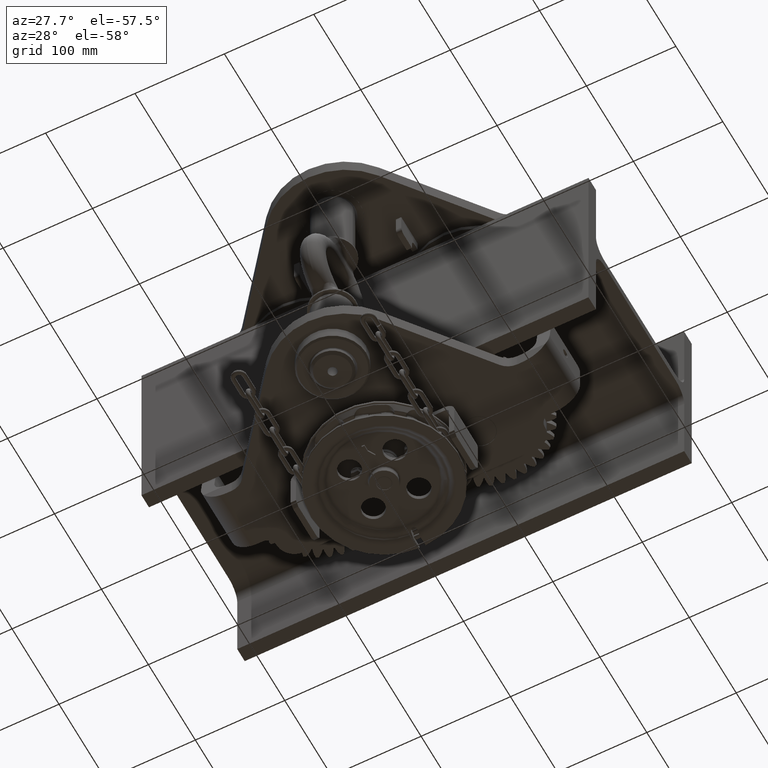
[diagram: clean part render]
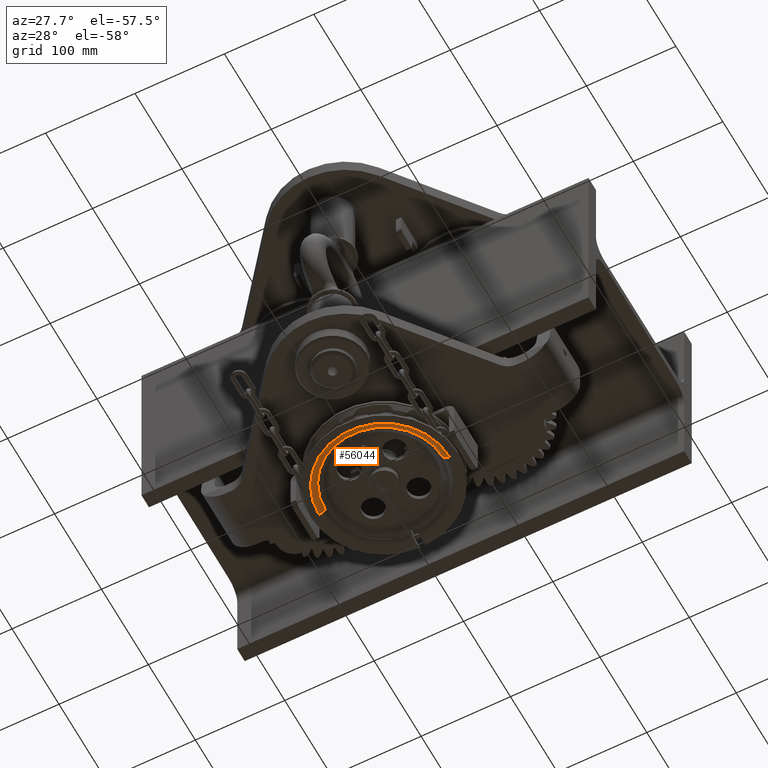
[diagram: same view with one face highlighted and labeled with its STEP entity id]
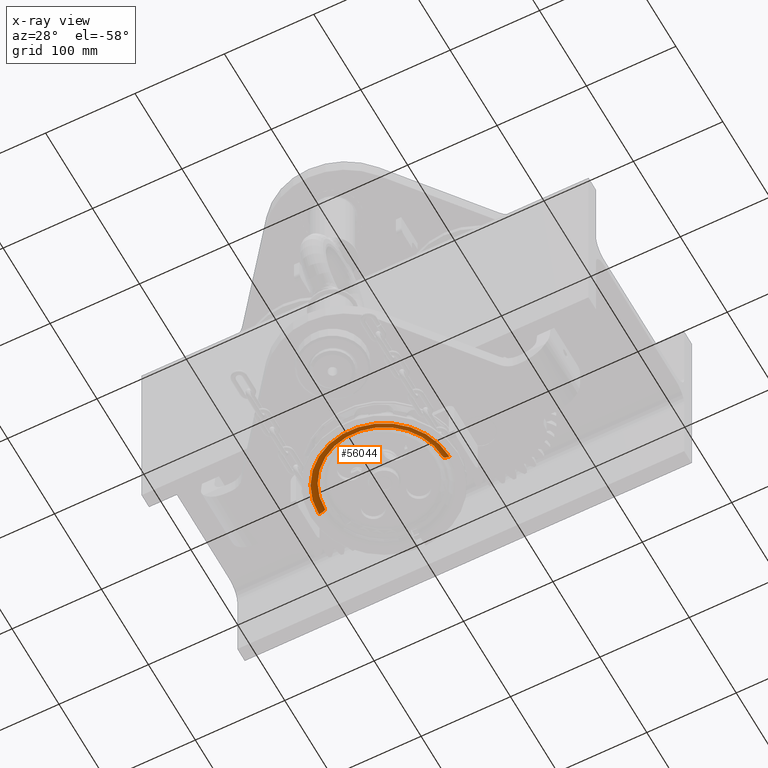
[diagram: x-ray of the same camera — body ghosted, the highlighted face saturated]
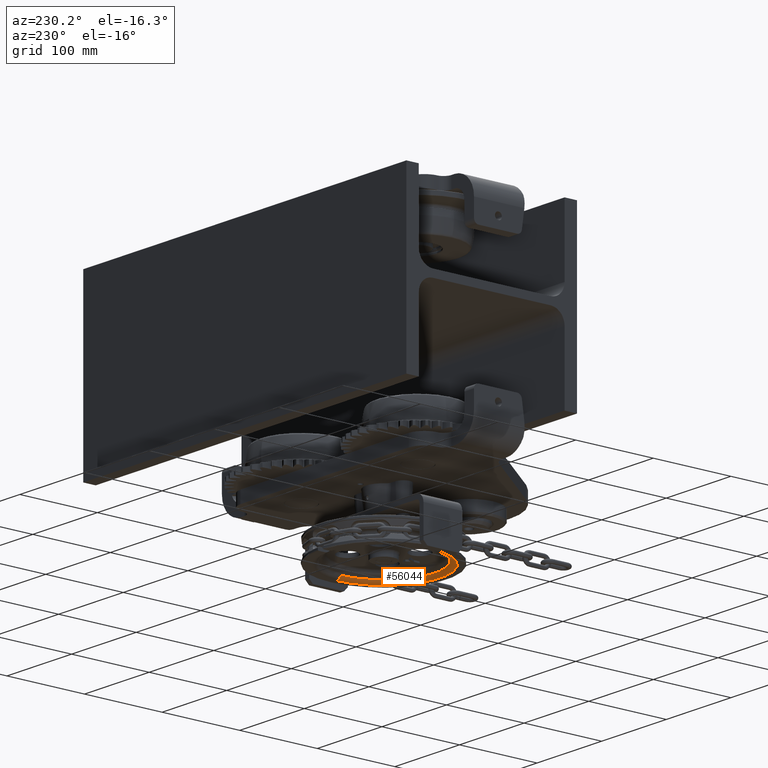
[diagram: same view with one face highlighted and labeled with its STEP entity id]
A machine part, auxiliary view. The second image highlights one B-rep face of the part: STEP entity #56044.
The next image is the same camera in x-ray: the body ghosted, the highlighted face saturated — about 0% of this face is hidden behind the body in this view.
A second angle (auxiliary view) of the same face is appended — the face is thin or edge-on in the first view.
In plain terms, the highlighted toroidal blend (fillet) surface has major radius 73 mm and minor (blend) radius 8.5 mm.
Its self-contained STEP definition (entity closure, byte-faithful):
#1209 = CIRCLE ( 'NONE', #80434, 65.94875014980952700 ) ;
#2949 = CARTESIAN_POINT ( 'NONE',  ( 65.94875014980868900, -69.07999999999998400, -213.7465646050803800 ) ) ;
#7599 = CARTESIAN_POINT ( 'NONE',  ( 72.99999999999919000, -69.07999999999998400, -217.5000000000012500 ) ) ;
#8561 = CARTESIAN_POINT ( 'NONE',  ( -73.00000000000082400, -69.08000000000001300, -209.0000000000004300 ) ) ;
#8819 = CARTESIAN_POINT ( 'NONE',  ( -8.010122485547073900E-013, -69.07999999999999800, -209.0000000000007100 ) ) ;
#10165 = EDGE_CURVE ( 'NONE', #61050, #66592, #26808, .T. ) ;
#10647 = VERTEX_POINT ( 'NONE', #64761 ) ;
#10655 = VERTEX_POINT ( 'NONE', #2949 ) ;
#14634 = CARTESIAN_POINT ( 'NONE',  ( 72.99999999999921800, -69.07999999999998400, -209.0000000000009900 ) ) ;
#15771 = DIRECTION ( 'NONE',  ( 1.000000000000000000, 0.0000000000000000000, 0.0000000000000000000 ) ) ;
#17290 = EDGE_CURVE ( 'NONE', #10647, #61050, #103757, .T. ) ;
#26645 = DIRECTION ( 'NONE',  ( 1.000000000000000000, 1.702796050038578000E-016, -3.889090410080496300E-015 ) ) ;
#26808 = CIRCLE ( 'NONE', #111265, 73.00000000000002800 ) ;
#28737 = TOROIDAL_SURFACE ( 'NONE', #86946, 73.00000000000001400, 8.500000000000243400 ) ;
#29614 = ORIENTED_EDGE ( 'NONE', *, *, #17290, .F. ) ;
#41799 = DIRECTION ( 'NONE',  ( 2.220446049250265000E-016, -1.000000000000000000, 5.529568124670074900E-018 ) ) ;
#43490 = DIRECTION ( 'NONE',  ( 3.889090410080496300E-015, 5.529568124670938500E-018, 1.000000000000000000 ) ) ;
#44869 = AXIS2_PLACEMENT_3D ( 'NONE', #14634, #41799, #15771 ) ;
#52717 = DIRECTION ( 'NONE',  ( 3.889090410080496300E-015, 5.529568124670938500E-018, 1.000000000000000000 ) ) ;
#53966 = AXIS2_PLACEMENT_3D ( 'NONE', #8561, #62167, #78627 ) ;
#56044 = ADVANCED_FACE ( 'NONE', ( #56624 ), #28737, .T. ) ;
#56624 = FACE_OUTER_BOUND ( 'NONE', #102816, .T. ) ;
#57443 = DIRECTION ( 'NONE',  ( 3.889090410080496300E-015, 5.529568124670938500E-018, 1.000000000000000000 ) ) ;
#59654 = ORIENTED_EDGE ( 'NONE', *, *, #10165, .F. ) ;
#59960 = CIRCLE ( 'NONE', #44869, 8.500000000000243400 ) ;
#61050 = VERTEX_POINT ( 'NONE', #109129 ) ;
#62167 = DIRECTION ( 'NONE',  ( -9.957992501029118000E-017, 1.000000000000000000, -5.529568124670551000E-018 ) ) ;
#64761 = CARTESIAN_POINT ( 'NONE',  ( -65.94875014981033700, -69.07999999999999800, -213.7465646050798700 ) ) ;
#66592 = VERTEX_POINT ( 'NONE', #7599 ) ;
#68860 = ORIENTED_EDGE ( 'NONE', *, *, #96335, .T. ) ;
#75085 = ORIENTED_EDGE ( 'NONE', *, *, #104002, .T. ) ;
#78627 = DIRECTION ( 'NONE',  ( -1.000000000000000000, 0.0000000000000000000, 0.0000000000000000000 ) ) ;
#80434 = AXIS2_PLACEMENT_3D ( 'NONE', #113168, #43490, #104606 ) ;
#84793 = DIRECTION ( 'NONE',  ( 1.000000000000000000, 1.901066822988281000E-016, -3.802133645976561900E-015 ) ) ;
#86946 = AXIS2_PLACEMENT_3D ( 'NONE', #8819, #52717, #26645 ) ;
#96335 = EDGE_CURVE ( 'NONE', #10647, #10655, #1209, .T. ) ;
#102816 = EDGE_LOOP ( 'NONE', ( #29614, #68860, #75085, #59654 ) ) ;
#103757 = CIRCLE ( 'NONE', #53966, 8.500000000000243400 ) ;
#104002 = EDGE_CURVE ( 'NONE', #10655, #66592, #59960, .T. ) ;
#104606 = DIRECTION ( 'NONE',  ( 1.000000000000000000, 2.104329161097003400E-016, -3.787792489974606100E-015 ) ) ;
#109129 = CARTESIAN_POINT ( 'NONE',  ( -73.00000000000085300, -69.07999999999999800, -217.5000000000006800 ) ) ;
#110791 = CARTESIAN_POINT ( 'NONE',  ( -8.340695170403924800E-013, -69.07999999999999800, -217.5000000000009400 ) ) ;
#111265 = AXIS2_PLACEMENT_3D ( 'NONE', #110791, #57443, #84793 ) ;
#113168 = CARTESIAN_POINT ( 'NONE',  ( -8.194720674411491700E-013, -69.07999999999999800, -213.7465646050801200 ) ) ;